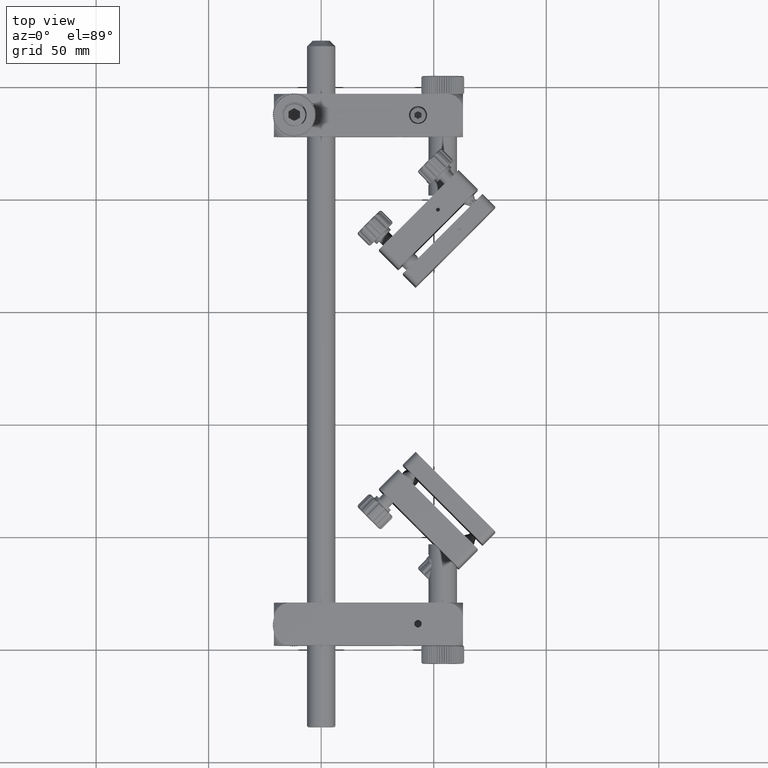
[diagram: clean part render]
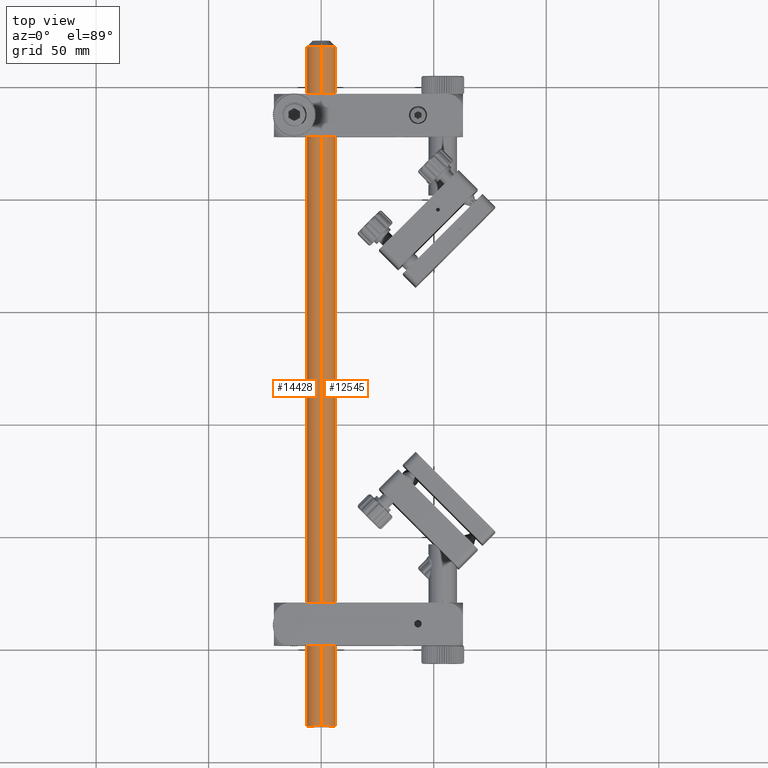
[diagram: same view with one multi-face feature highlighted, each face labeled with its STEP entity id]
A machine part, top view. The highlighted faces form ONE feature: a constant-radius fillet chain: 2 tangent blend faces with common blend radius 6.35 mm. The faces share edges in the B-rep.
Their STEP definitions:
[1] entity #14428 (Cylinder):
#1069 = DIRECTION ( 'NONE',  ( 1.276756478318930021E-15, 1.000000000000000000, -1.723985658938546560E-16 ) ) ;
#1446 = EDGE_CURVE ( 'NONE', #5931, #54040, #33996, .T. ) ;
#4240 = AXIS2_PLACEMENT_3D ( 'NONE', #57622, #13818, #37835 ) ;
#5550 = AXIS2_PLACEMENT_3D ( 'NONE', #9513, #13669, #13983 ) ;
#5931 = VERTEX_POINT ( 'NONE', #27566 ) ;
#5933 = EDGE_CURVE ( 'NONE', #43363, #5931, #60013, .T. ) ;
#7212 = DIRECTION ( 'NONE',  ( 1.276756478318930021E-15, 1.000000000000000000, -1.723985658938546560E-16 ) ) ;
#8702 = CYLINDRICAL_SURFACE ( 'NONE', #4240, 6.349999999999996092 ) ;
#8938 = CARTESIAN_POINT ( 'NONE',  ( 2.114847331448712870E-13, 317.7465331105718178, 6.349999999999925926 ) ) ;
#9513 = CARTESIAN_POINT ( 'NONE',  ( 4.056849446123032955E-13, 317.7465331105718178, -5.477904662600682789E-14 ) ) ;
#13669 = DIRECTION ( 'NONE',  ( -1.276756478318930021E-15, -1.000000000000000000, 1.723985658938546560E-16 ) ) ;
#13818 = DIRECTION ( 'NONE',  ( 1.276756478318930021E-15, 1.000000000000000000, -1.723985658938546560E-16 ) ) ;
#13983 = DIRECTION ( 'NONE',  ( 2.220446049250341677E-16, 0.000000000000000000, -1.000000000000000000 ) ) ;
#14428 = ADVANCED_FACE ( 'NONE', ( #48002 ), #8702, .T. ) ;
#18251 = ORIENTED_EDGE ( 'NONE', *, *, #5933, .T. ) ;
#19963 = ORIENTED_EDGE ( 'NONE', *, *, #51832, .F. ) ;
#22439 = DIRECTION ( 'NONE',  ( 1.276756478318930021E-15, 1.000000000000000000, -1.723985658938546560E-16 ) ) ;
#24708 = VECTOR ( 'NONE', #7212, 1000.000000000000000 ) ;
#27566 = CARTESIAN_POINT ( 'NONE',  ( 1.869450491871228581E-14, 15.74653311057189242, 6.349999999999993427 ) ) ;
#33996 = LINE ( 'NONE', #53465, #57373 ) ;
#35606 = EDGE_LOOP ( 'NONE', ( #19963, #18251, #51976, #58390 ) ) ;
#37835 = DIRECTION ( 'NONE',  ( -2.220446049250264024E-16, 0.000000000000000000, 1.000000000000000000 ) ) ;
#38622 = AXIS2_PLACEMENT_3D ( 'NONE', #55686, #22439, #55996 ) ;
#42381 = CARTESIAN_POINT ( 'NONE',  ( 4.522789155487039455E-13, 352.5271179219657824, -6.350000000000057376 ) ) ;
#43106 = CARTESIAN_POINT ( 'NONE',  ( 2.150823503448768327E-13, 15.74653311057189242, -6.349999999999983658 ) ) ;
#43363 = VERTEX_POINT ( 'NONE', #43106 ) ;
#48002 = FACE_OUTER_BOUND ( 'NONE', #35606, .T. ) ;
#51832 = EDGE_CURVE ( 'NONE', #43363, #62765, #56427, .T. ) ;
#51976 = ORIENTED_EDGE ( 'NONE', *, *, #1446, .T. ) ;
#53465 = CARTESIAN_POINT ( 'NONE',  ( 4.486812983486974911E-13, 352.5271179219657824, 6.349999999999935696 ) ) ;
#54040 = VERTEX_POINT ( 'NONE', #8938 ) ;
#55656 = EDGE_CURVE ( 'NONE', #54040, #62765, #60654, .T. ) ;
#55686 = CARTESIAN_POINT ( 'NONE',  ( 2.010448815998623966E-14, 15.74653311057189242, -2.714679726062694855E-15 ) ) ;
#55996 = DIRECTION ( 'NONE',  ( -2.220446049250322449E-16, 0.000000000000000000, 1.000000000000000000 ) ) ;
#56427 = LINE ( 'NONE', #42381, #24708 ) ;
#57373 = VECTOR ( 'NONE', #1069, 1000.000000000000000 ) ;
#57622 = CARTESIAN_POINT ( 'NONE',  ( 4.500912815899713692E-13, 352.5271179219657824, -6.077516956844064715E-14 ) ) ;
#58202 = CARTESIAN_POINT ( 'NONE',  ( 2.150823503448770094E-13, 317.7465331105718178, -6.350000000000034284 ) ) ;
#58390 = ORIENTED_EDGE ( 'NONE', *, *, #55656, .T. ) ;
#60013 = CIRCLE ( 'NONE', #38622, 6.349999999999996092 ) ;
#60654 = CIRCLE ( 'NONE', #5550, 6.349999999999996092 ) ;
#62765 = VERTEX_POINT ( 'NONE', #58202 ) ;
[2] entity #12545 (Cylinder):
#1004 = AXIS2_PLACEMENT_3D ( 'NONE', #53949, #58795, #23961 ) ;
#1069 = DIRECTION ( 'NONE',  ( 1.276756478318930021E-15, 1.000000000000000000, -1.723985658938546560E-16 ) ) ;
#1446 = EDGE_CURVE ( 'NONE', #5931, #54040, #33996, .T. ) ;
#5931 = VERTEX_POINT ( 'NONE', #27566 ) ;
#6110 = CIRCLE ( 'NONE', #1004, 6.349999999999996092 ) ;
#7212 = DIRECTION ( 'NONE',  ( 1.276756478318930021E-15, 1.000000000000000000, -1.723985658938546560E-16 ) ) ;
#8938 = CARTESIAN_POINT ( 'NONE',  ( 2.114847331448712870E-13, 317.7465331105718178, 6.349999999999925926 ) ) ;
#12545 = ADVANCED_FACE ( 'NONE', ( #19769 ), #58750, .T. ) ;
#14409 = DIRECTION ( 'NONE',  ( 1.276756478318930021E-15, 1.000000000000000000, -1.723985658938546560E-16 ) ) ;
#15368 = AXIS2_PLACEMENT_3D ( 'NONE', #34456, #53914, #37225 ) ;
#17800 = ORIENTED_EDGE ( 'NONE', *, *, #1446, .F. ) ;
#19769 = FACE_OUTER_BOUND ( 'NONE', #36299, .T. ) ;
#23961 = DIRECTION ( 'NONE',  ( 2.220446049250341677E-16, 0.000000000000000000, -1.000000000000000000 ) ) ;
#24663 = CARTESIAN_POINT ( 'NONE',  ( 2.010448815998623966E-14, 15.74653311057189242, -2.714679726062694855E-15 ) ) ;
#24708 = VECTOR ( 'NONE', #7212, 1000.000000000000000 ) ;
#27566 = CARTESIAN_POINT ( 'NONE',  ( 1.869450491871228581E-14, 15.74653311057189242, 6.349999999999993427 ) ) ;
#33996 = LINE ( 'NONE', #53465, #57373 ) ;
#34456 = CARTESIAN_POINT ( 'NONE',  ( 4.500912815899713692E-13, 352.5271179219657824, -6.077516956844064715E-14 ) ) ;
#36299 = EDGE_LOOP ( 'NONE', ( #43974, #40554, #40945, #17800 ) ) ;
#37225 = DIRECTION ( 'NONE',  ( -2.220446049250264024E-16, 0.000000000000000000, 1.000000000000000000 ) ) ;
#40554 = ORIENTED_EDGE ( 'NONE', *, *, #51832, .T. ) ;
#40945 = ORIENTED_EDGE ( 'NONE', *, *, #49885, .T. ) ;
#42381 = CARTESIAN_POINT ( 'NONE',  ( 4.522789155487039455E-13, 352.5271179219657824, -6.350000000000057376 ) ) ;
#43106 = CARTESIAN_POINT ( 'NONE',  ( 2.150823503448768327E-13, 15.74653311057189242, -6.349999999999983658 ) ) ;
#43363 = VERTEX_POINT ( 'NONE', #43106 ) ;
#43974 = ORIENTED_EDGE ( 'NONE', *, *, #48358, .T. ) ;
#44140 = DIRECTION ( 'NONE',  ( -2.220446049250322449E-16, 0.000000000000000000, 1.000000000000000000 ) ) ;
#48358 = EDGE_CURVE ( 'NONE', #5931, #43363, #48965, .T. ) ;
#48965 = CIRCLE ( 'NONE', #54057, 6.349999999999996092 ) ;
#49885 = EDGE_CURVE ( 'NONE', #62765, #54040, #6110, .T. ) ;
#51832 = EDGE_CURVE ( 'NONE', #43363, #62765, #56427, .T. ) ;
#53465 = CARTESIAN_POINT ( 'NONE',  ( 4.486812983486974911E-13, 352.5271179219657824, 6.349999999999935696 ) ) ;
#53914 = DIRECTION ( 'NONE',  ( 1.276756478318930021E-15, 1.000000000000000000, -1.723985658938546560E-16 ) ) ;
#53949 = CARTESIAN_POINT ( 'NONE',  ( 4.056849446123032955E-13, 317.7465331105718178, -5.477904662600682789E-14 ) ) ;
#54040 = VERTEX_POINT ( 'NONE', #8938 ) ;
#54057 = AXIS2_PLACEMENT_3D ( 'NONE', #24663, #14409, #44140 ) ;
#56427 = LINE ( 'NONE', #42381, #24708 ) ;
#57373 = VECTOR ( 'NONE', #1069, 1000.000000000000000 ) ;
#58202 = CARTESIAN_POINT ( 'NONE',  ( 2.150823503448770094E-13, 317.7465331105718178, -6.350000000000034284 ) ) ;
#58750 = CYLINDRICAL_SURFACE ( 'NONE', #15368, 6.349999999999996092 ) ;
#58795 = DIRECTION ( 'NONE',  ( -1.276756478318930021E-15, -1.000000000000000000, 1.723985658938546560E-16 ) ) ;
#62765 = VERTEX_POINT ( 'NONE', #58202 ) ;